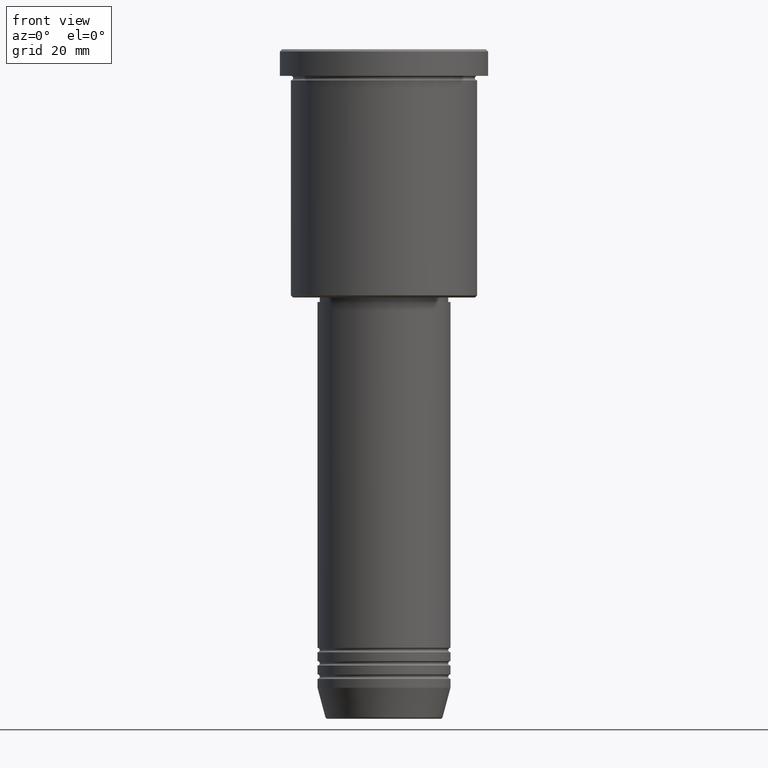
[diagram: clean part render]
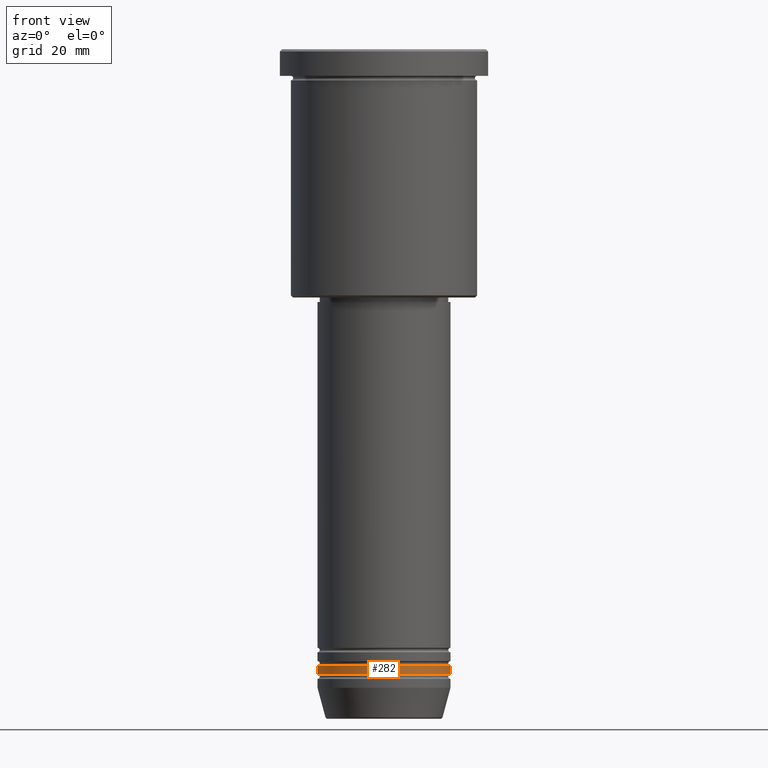
[diagram: same view with one face highlighted and labeled with its STEP entity id]
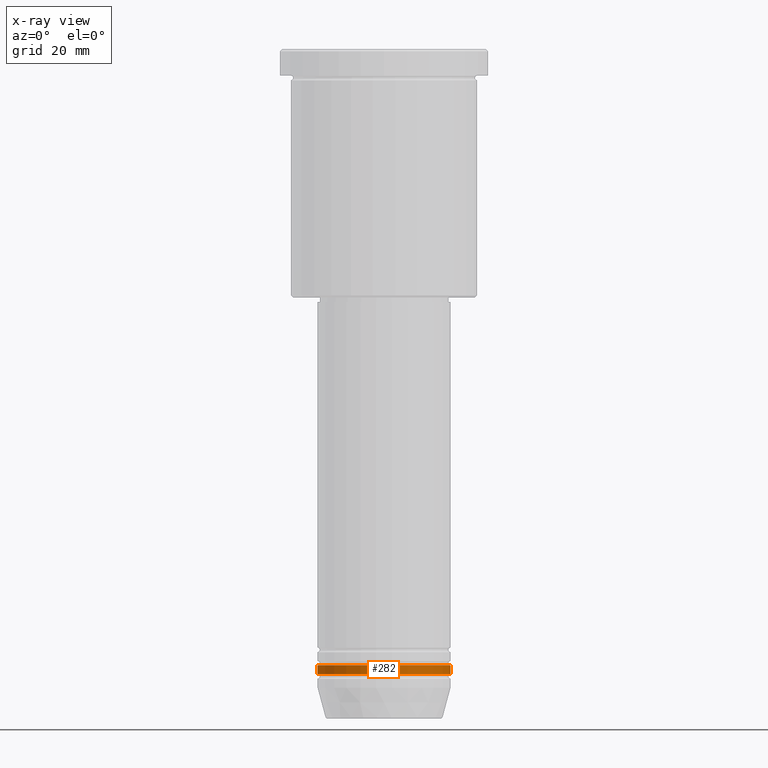
[diagram: x-ray of the same camera — body ghosted, the highlighted face saturated]
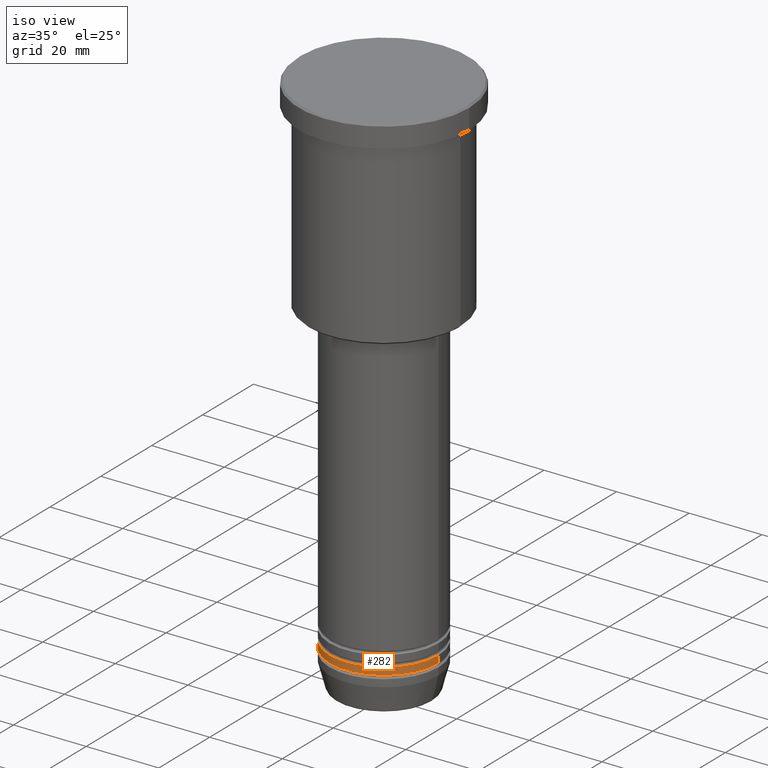
[diagram: same view with one face highlighted and labeled with its STEP entity id]
A machine part, front view. The second image highlights one B-rep face of the part: STEP entity #282.
The next image is the same camera in x-ray: the body ghosted, the highlighted face saturated — about 0% of this face is hidden behind the body in this view.
A second angle (iso view) of the same face is appended — the face is thin or edge-on in the first view.
In plain terms, the highlighted cylindrical surface (partial cylindrical patch) has radius 15 mm, axis along (-0, -0, 1).
Its self-contained STEP definition (entity closure, byte-faithful):
#41 = ORIENTED_EDGE ( 'NONE', *, *, #747, .T. ) ;
#71 = DIRECTION ( 'NONE',  ( 1.000000000000000000, 0.000000000000000000, 0.000000000000000000 ) ) ;
#72 = FACE_OUTER_BOUND ( 'NONE', #1182, .T. ) ;
#138 = CARTESIAN_POINT ( 'NONE',  ( 0.000000000000000000, 0.000000000000000000, -138.9999999999999716 ) ) ;
#178 = VERTEX_POINT ( 'NONE', #521 ) ;
#179 = VERTEX_POINT ( 'NONE', #968 ) ;
#206 = CARTESIAN_POINT ( 'NONE',  ( 15.00000000000000000, 0.000000000000000000, 0.000000000000000000 ) ) ;
#261 = VERTEX_POINT ( 'NONE', #605 ) ;
#282 = ADVANCED_FACE ( 'NONE', ( #72 ), #980, .T. ) ;
#334 = DIRECTION ( 'NONE',  ( 1.000000000000000000, 0.000000000000000000, 0.000000000000000000 ) ) ;
#339 = CARTESIAN_POINT ( 'NONE',  ( 0.000000000000000000, 0.000000000000000000, 0.000000000000000000 ) ) ;
#345 = LINE ( 'NONE', #548, #832 ) ;
#383 = ORIENTED_EDGE ( 'NONE', *, *, #1085, .T. ) ;
#443 = ORIENTED_EDGE ( 'NONE', *, *, #531, .F. ) ;
#465 = AXIS2_PLACEMENT_3D ( 'NONE', #998, #532, #839 ) ;
#481 = DIRECTION ( 'NONE',  ( -0.000000000000000000, -0.000000000000000000, 1.000000000000000000 ) ) ;
#521 = CARTESIAN_POINT ( 'NONE',  ( 15.00000000000000000, 0.000000000000000000, -138.9999999999999716 ) ) ;
#531 = EDGE_CURVE ( 'NONE', #179, #178, #1041, .T. ) ;
#532 = DIRECTION ( 'NONE',  ( -0.000000000000000000, -0.000000000000000000, 1.000000000000000000 ) ) ;
#545 = ORIENTED_EDGE ( 'NONE', *, *, #667, .F. ) ;
#548 = CARTESIAN_POINT ( 'NONE',  ( -15.00000000000000000, 1.836970198721029589E-15, 0.000000000000000000 ) ) ;
#567 = LINE ( 'NONE', #206, #693 ) ;
#605 = CARTESIAN_POINT ( 'NONE',  ( -15.00000000000000000, 1.836970198721029589E-15, -141.0000000000000000 ) ) ;
#667 = EDGE_CURVE ( 'NONE', #261, #179, #345, .T. ) ;
#693 = VECTOR ( 'NONE', #481, 1000.000000000000000 ) ;
#717 = VERTEX_POINT ( 'NONE', #941 ) ;
#730 = AXIS2_PLACEMENT_3D ( 'NONE', #138, #882, #71 ) ;
#747 = EDGE_CURVE ( 'NONE', #717, #178, #567, .T. ) ;
#749 = CIRCLE ( 'NONE', #465, 15.00000000000000000 ) ;
#803 = DIRECTION ( 'NONE',  ( -0.000000000000000000, -0.000000000000000000, 1.000000000000000000 ) ) ;
#832 = VECTOR ( 'NONE', #803, 1000.000000000000000 ) ;
#839 = DIRECTION ( 'NONE',  ( 1.000000000000000000, 0.000000000000000000, 0.000000000000000000 ) ) ;
#882 = DIRECTION ( 'NONE',  ( -0.000000000000000000, -0.000000000000000000, 1.000000000000000000 ) ) ;
#916 = AXIS2_PLACEMENT_3D ( 'NONE', #339, #1158, #334 ) ;
#941 = CARTESIAN_POINT ( 'NONE',  ( 15.00000000000000000, 0.000000000000000000, -141.0000000000000000 ) ) ;
#968 = CARTESIAN_POINT ( 'NONE',  ( -15.00000000000000000, 1.836970198721029589E-15, -138.9999999999999716 ) ) ;
#980 = CYLINDRICAL_SURFACE ( 'NONE', #916, 15.00000000000000000 ) ;
#998 = CARTESIAN_POINT ( 'NONE',  ( 0.000000000000000000, 0.000000000000000000, -141.0000000000000000 ) ) ;
#1041 = CIRCLE ( 'NONE', #730, 15.00000000000000000 ) ;
#1085 = EDGE_CURVE ( 'NONE', #261, #717, #749, .T. ) ;
#1158 = DIRECTION ( 'NONE',  ( -0.000000000000000000, -0.000000000000000000, 1.000000000000000000 ) ) ;
#1182 = EDGE_LOOP ( 'NONE', ( #545, #383, #41, #443 ) ) ;